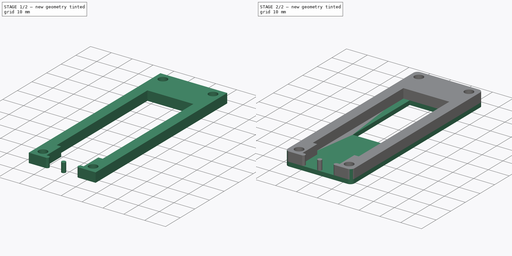
[diagram: build sequence overview — one tinted view per stage of 2, left to right]
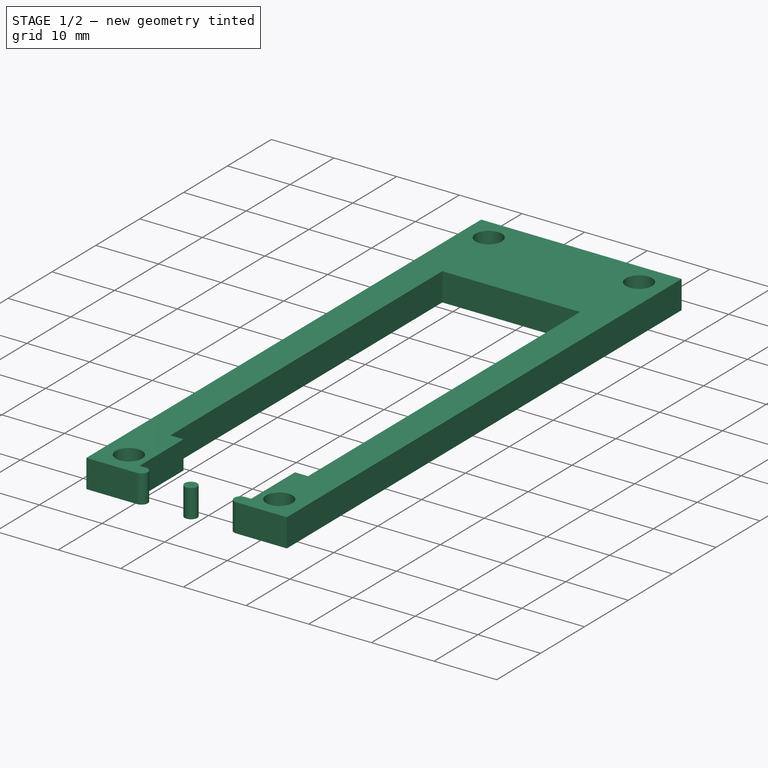
[diagram: stage 1 of 2 — iso view after this stage's code; geometry added in this stage tinted green]
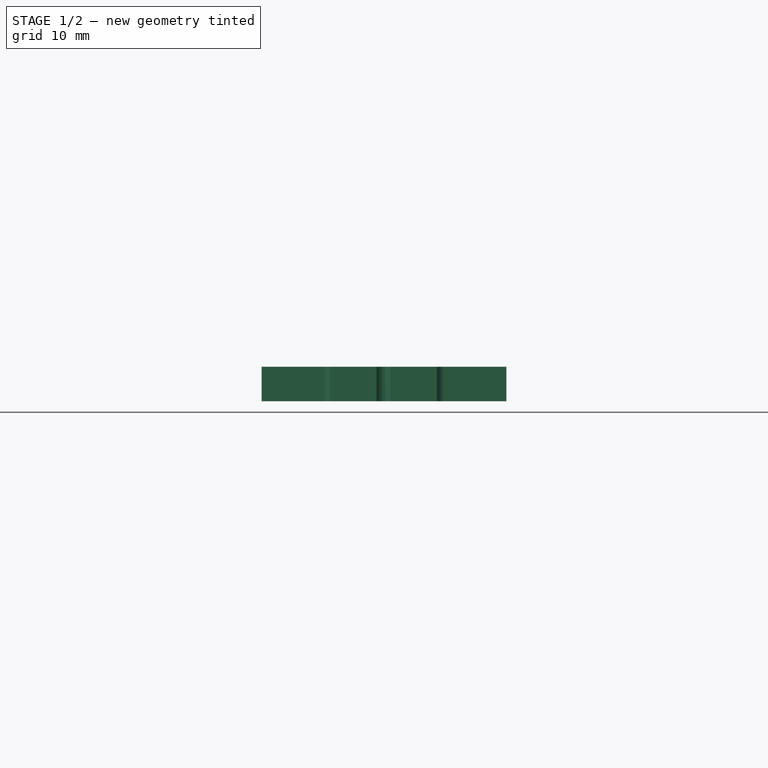
[diagram: stage 1 of 2 — front view after this stage's code; geometry added in this stage tinted green]
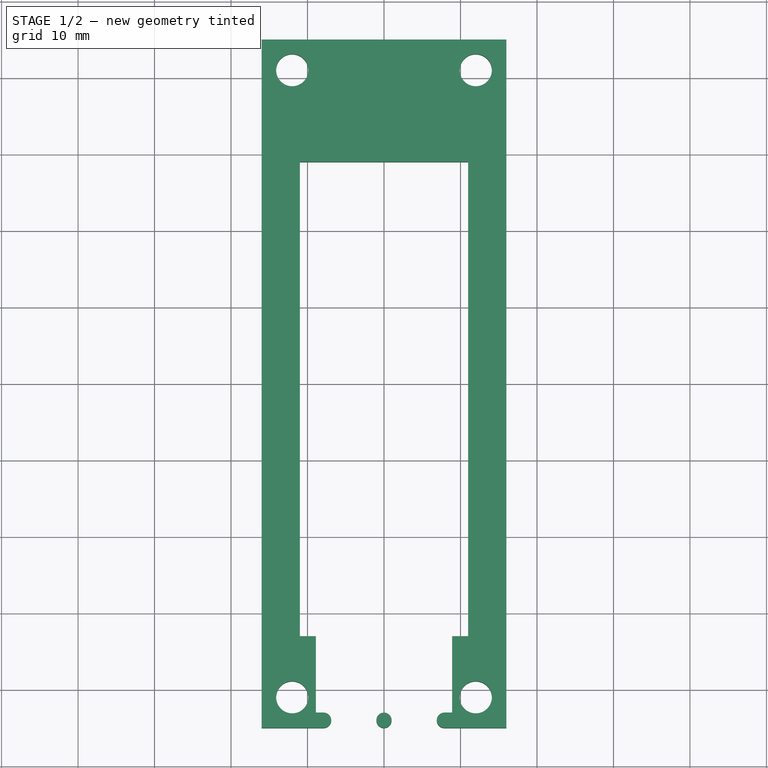
[diagram: stage 1 of 2 — top view after this stage's code; geometry added in this stage tinted green]
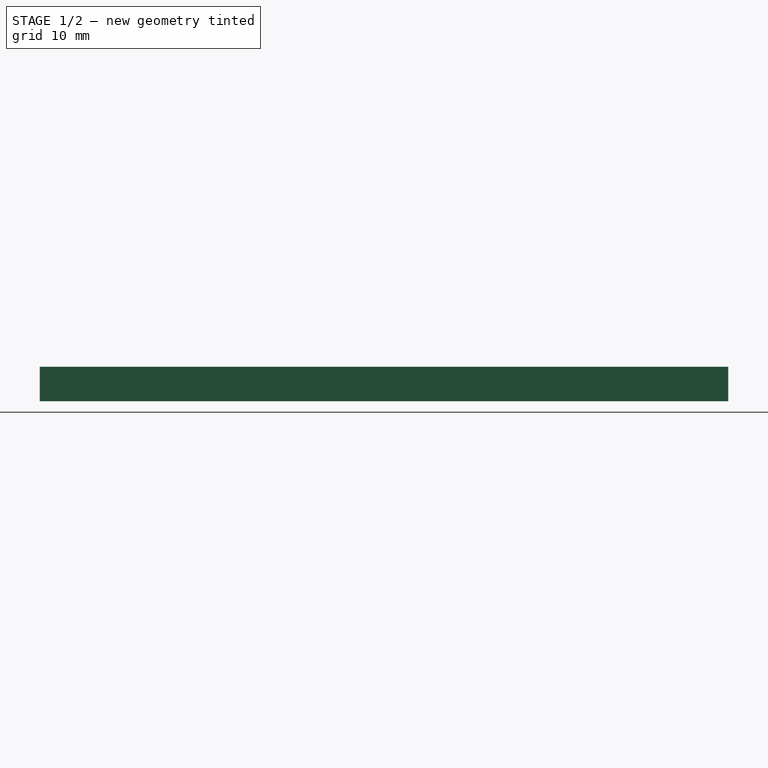
[diagram: stage 1 of 2 — right view after this stage's code; geometry added in this stage tinted green]
FCSTD DOCUMENT  (FreeCAD 0.20R)
Label: top_26650_case
License: All rights reserved
LicenseURL: http://en.wikipedia.org/wiki/All_rights_reserved
objects: Sketcher::SketchObject×2, Part::Extrusion×2, Part::Fillet×2
note: 6 computed .brp shape members not serialized (recipe doc carries the construction recipe); baked Part::Feature solids carry a one-line shape summary decoded from their .brp

FEATURE [Sketcher::SketchObject] Sketch
  FullyConstrained = true
  sketch-geometry (12):
    g0: LineSegment StartX=-16 StartY=45 StartZ=0 EndX=16 EndY=45 EndZ=0
    g1: LineSegment StartX=16 StartY=45 StartZ=0 EndX=16 EndY=-45 EndZ=0
    g2: LineSegment StartX=16 StartY=-45 StartZ=0 EndX=-16 EndY=-45 EndZ=0
    g3: LineSegment StartX=-16 StartY=-45 StartZ=0 EndX=-16 EndY=45 EndZ=0
    g4: Circle CenterX=-12 CenterY=41 CenterZ=0 NormalX=0 NormalY=0 NormalZ=1 AngleXU=0 Radius=2.1
    g5: Circle CenterX=12 CenterY=41 CenterZ=0 NormalX=0 NormalY=0 NormalZ=1 AngleXU=0 Radius=2.1
    g6: Circle CenterX=-12 CenterY=-41 CenterZ=0 NormalX=0 NormalY=0 NormalZ=1 AngleXU=0 Radius=2.1
    g7: Circle CenterX=12 CenterY=-41 CenterZ=0 NormalX=0 NormalY=0 NormalZ=1 AngleXU=0 Radius=2.1
    g8: LineSegment StartX=-8 StartY=29 StartZ=0 EndX=8 EndY=29 EndZ=0
    g9: LineSegment StartX=8 StartY=29 StartZ=0 EndX=8 EndY=-10 EndZ=0
    g10: LineSegment StartX=8 StartY=-10 StartZ=0 EndX=-8 EndY=-10 EndZ=0
    g11: LineSegment StartX=-8 StartY=-10 StartZ=0 EndX=-8 EndY=29 EndZ=0
  constraints (35):
    c: Coincident(g0,g1)
    c: Coincident(g1,g2)
    c: Coincident(g2,g3)
    c: Coincident(g3,g0)
    c: Horizontal(g0)
    c: Horizontal(g2)
    c: Vertical(g1)
    c: Vertical(g3)
    c: DistanceY(g1,g1) = 90
    c: DistanceX(g2,g2) = 32
    c: Equal(g5,g4)
    c: Equal(g7,g5)
    c: Equal(g6,g7)
    c: Diameter(g5) = 4.2
    c: DistanceX(g0,g4) = 4
    c: DistanceX(g5,g0) = 4
    c: DistanceX(g2,g6) = 4
    c: DistanceX(g7,g1) = 4
    c: DistanceY(g2,g6) = 4
    c: DistanceY(g1,g7) = 4
    c: DistanceY(g4,g0) = 4
    c: DistanceY(g5,g0) = 4
    c: Symmetric(g0,g2,g-1)
    c: Coincident(g8,g9)
    c: Coincident(g9,g10)
    c: Coincident(g10,g11)
    c: Coincident(g11,g8)
    c: Horizontal(g8)
    c: Horizontal(g10)
    c: Vertical(g9)
    c: Vertical(g11)
    c: DistanceX(g8,g0) = 8
    c: DistanceX(g0,g8) = 8
    c: DistanceY(g8,g0) = 16
    c: DistanceY(g1,g9) = 35
FEATURE [Part::Extrusion] Extrude
  Base = -> Sketch
  Dir = (0,0,1)
  DirMode = 2
  FaceMakerClass = Part::FaceMakerBullseye
  LengthFwd = 2
  LengthRev = 0
  Solid = true
  Symmetric = false
FEATURE [Sketcher::SketchObject] Sketch001
  ExternalGeometry = -> [Extrude]
  FullyConstrained = true
  MapMode = 5
  Placement = pos=(0,0,2) rot=(0,0,1;0rad)
  Support = -> [Extrude]
  expr: Constraints[11] = .Constraints.pp_spacing
  sketch-geometry (21):
    g0: Circle CenterX=0 CenterY=-44 CenterZ=0 NormalX=0 NormalY=0 NormalZ=1 AngleXU=0 Radius=1
    g1: ArcOfCircle CenterX=7.9 CenterY=-44 CenterZ=0 NormalX=0 NormalY=0 NormalZ=1 AngleXU=0 Radius=1 StartAngle=1.5708 EndAngle=4.71239
    g2: ArcOfCircle CenterX=-7.9 CenterY=-44 CenterZ=0 NormalX=0 NormalY=0 NormalZ=1 AngleXU=0 Radius=1 StartAngle=4.71239 EndAngle=7.85398
    g3: LineSegment StartX=-11 StartY=29 StartZ=0 EndX=-11 EndY=-33 EndZ=0
    g4: LineSegment StartX=-7.9 StartY=-43 StartZ=0 EndX=-8.9 EndY=-43 EndZ=0
    g5: LineSegment StartX=-8.9 StartY=-43 StartZ=0 EndX=-8.9 EndY=-33 EndZ=0
    g6: LineSegment StartX=-8.9 StartY=-33 StartZ=0 EndX=-11 EndY=-33 EndZ=0
    g7: LineSegment StartX=-11 StartY=29 StartZ=0 EndX=11 EndY=29 EndZ=0
    g8: LineSegment StartX=11 StartY=29 StartZ=0 EndX=11 EndY=-33 EndZ=0
    g9: LineSegment StartX=11 StartY=-33 StartZ=0 EndX=8.9 EndY=-33 EndZ=0
    g10: LineSegment StartX=7.9 StartY=-43 StartZ=0 EndX=8.9 EndY=-43 EndZ=0
    g11: LineSegment StartX=8.9 StartY=-43 StartZ=0 EndX=8.9 EndY=-33 EndZ=0
    g12: Circle CenterX=-12 CenterY=-41 CenterZ=0 NormalX=0 NormalY=0 NormalZ=1 AngleXU=0 Radius=2.1
    g13: Circle CenterX=12 CenterY=41 CenterZ=0 NormalX=0 NormalY=0 NormalZ=1 AngleXU=0 Radius=2.1
    g14: Circle CenterX=12 CenterY=-41 CenterZ=0 NormalX=0 NormalY=0 NormalZ=1 AngleXU=0 Radius=2.1
    g15: Circle CenterX=-12 CenterY=41 CenterZ=0 NormalX=0 NormalY=0 NormalZ=1 AngleXU=0 Radius=2.1
    g16: LineSegment StartX=-7.9 StartY=-45 StartZ=0 EndX=-16 EndY=-45 EndZ=0
    g17: LineSegment StartX=-16 StartY=-45 StartZ=0 EndX=-16 EndY=45 EndZ=0
    g18: LineSegment StartX=7.9 StartY=-45 StartZ=0 EndX=16 EndY=-45 EndZ=0
    g19: LineSegment StartX=16 StartY=-45 StartZ=0 EndX=16 EndY=45 EndZ=0
    g20: LineSegment StartX=-16 StartY=45 StartZ=0 EndX=16 EndY=45 EndZ=0
  constraints (57):
    c: PointOnObject(g0,g-2)
    c: Diameter(g0) = 2
    c: DistanceX(g2,g2) = 0
    c: DistanceX(g1,g1) = 0
    c: Diameter(g1) = 2
    c: Diameter(g2) = 2
    c: DistanceX(g2,g2) = 0
    c: DistanceX(g1,g1) = 0
    c: DistanceY(g0,g1) = 0
    c: DistanceY(g0,g2) = 0
    c: DistanceX(g2,g0) = 7.9  'pp_spacing'
    c: DistanceX(g0,g1) = 7.9
    c: PointOnObject(g2,g-4)
    c: Vertical(g3)
    c: Coincident(g4,g2)
    c: Horizontal(g4)
    c: Coincident(g5,g4)
    c: Vertical(g5)
    c: Coincident(g6,g5)
    c: Coincident(g6,g3)
    c: Horizontal(g6)
    c: DistanceX(g4,g4) = 1
    c: DistanceY(g5,g5) = 10
    c: DistanceX(g-5,g3) = 5
    c: Coincident(g7,g3)
    c: Horizontal(g7)
    c: PointOnObject(g-3,g7)
    c: Coincident(g8,g7)
    c: Vertical(g8)
    c: DistanceX(g8,g-4) = 5
    c: Coincident(g9,g8)
    c: Coincident(g10,g1)
    c: Horizontal(g10)
    c: DistanceX(g10,g10) = 1
    c: Coincident(g11,g10)
    c: Vertical(g11)
    c: DistanceY(g11,g11) = 10
    c: Coincident(g9,g11)
    c: Horizontal(g9)
    c: Coincident(g12,g-6)
    c: Diameter(g12) = 4.2
    c: Coincident(g13,g-8)
    c: Coincident(g14,g-7)
    c: Coincident(g15,g-9)
    c: Equal(g14,g12)
    c: Equal(g13,g14)
    c: Equal(g13,g15)
    c: Coincident(g16,g2)
    c: Coincident(g16,g-5)
    c: Coincident(g17,g16)
    c: Coincident(g17,g-5)
    c: Coincident(g18,g1)
    c: Coincident(g18,g-4)
    c: Coincident(g19,g18)
    c: Coincident(g19,g-10)
    c: Coincident(g20,g17)
    c: Coincident(g20,g19)
FEATURE [Part::Extrusion] Extrude001
  Base = -> Sketch001
  Dir = (0,0,1)
  DirMode = 2
  FaceMakerClass = Part::FaceMakerBullseye
  LengthFwd = 4.5
  LengthRev = 0
  Solid = true
  Symmetric = false
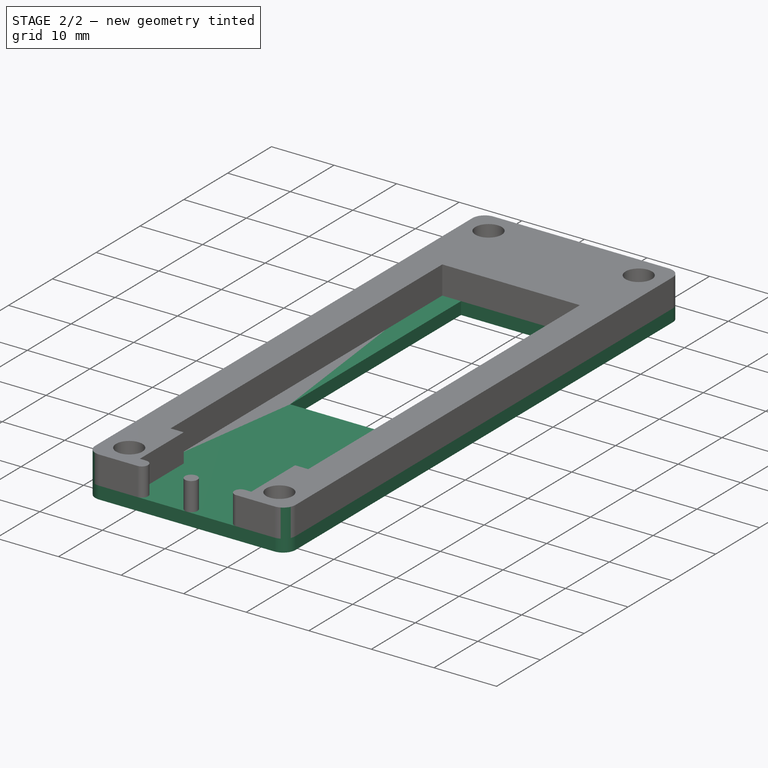
[diagram: stage 2 of 2 — iso view after this stage's code; geometry added in this stage tinted green]
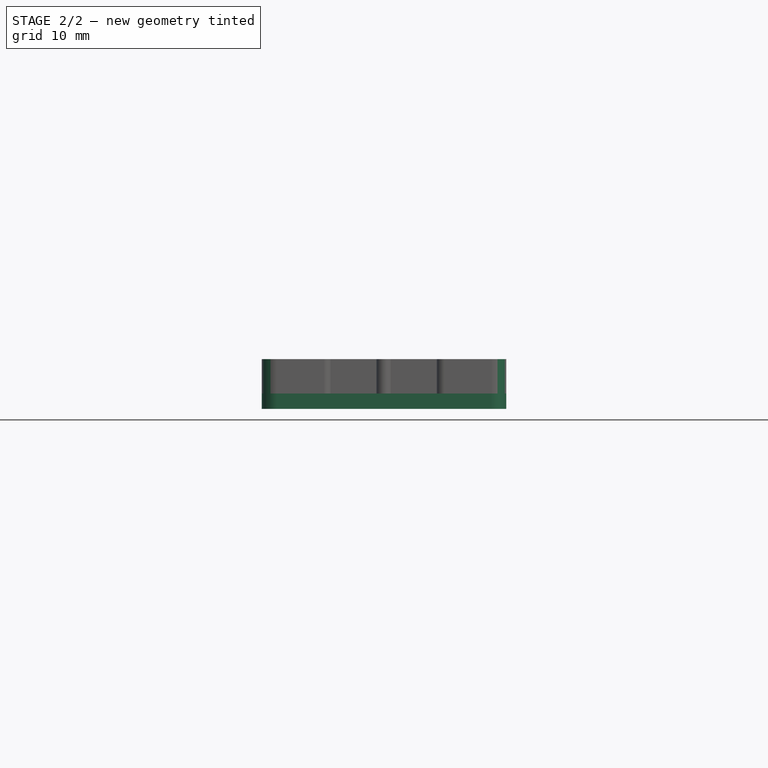
[diagram: stage 2 of 2 — front view after this stage's code; geometry added in this stage tinted green]
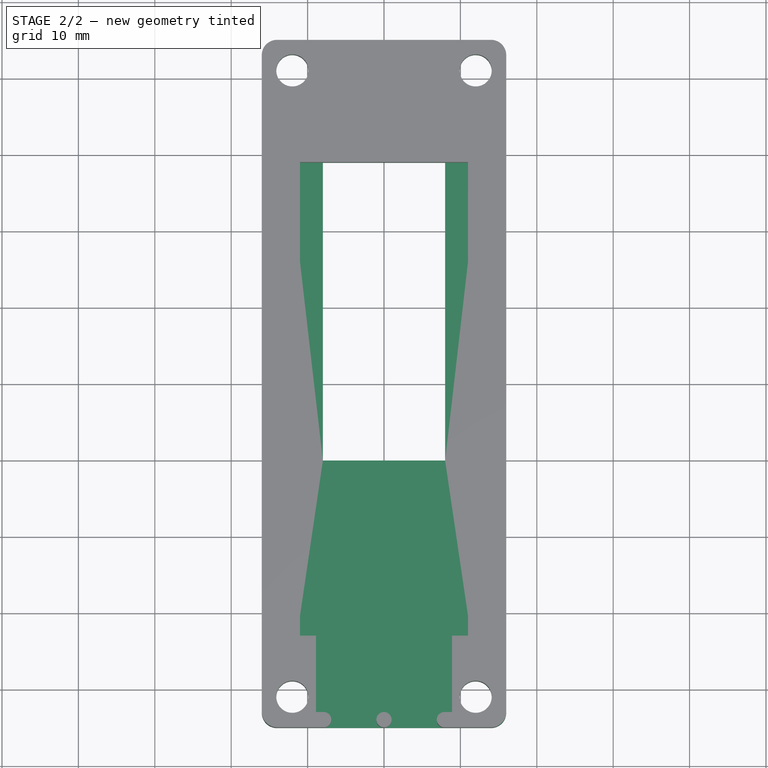
[diagram: stage 2 of 2 — top view after this stage's code; geometry added in this stage tinted green]
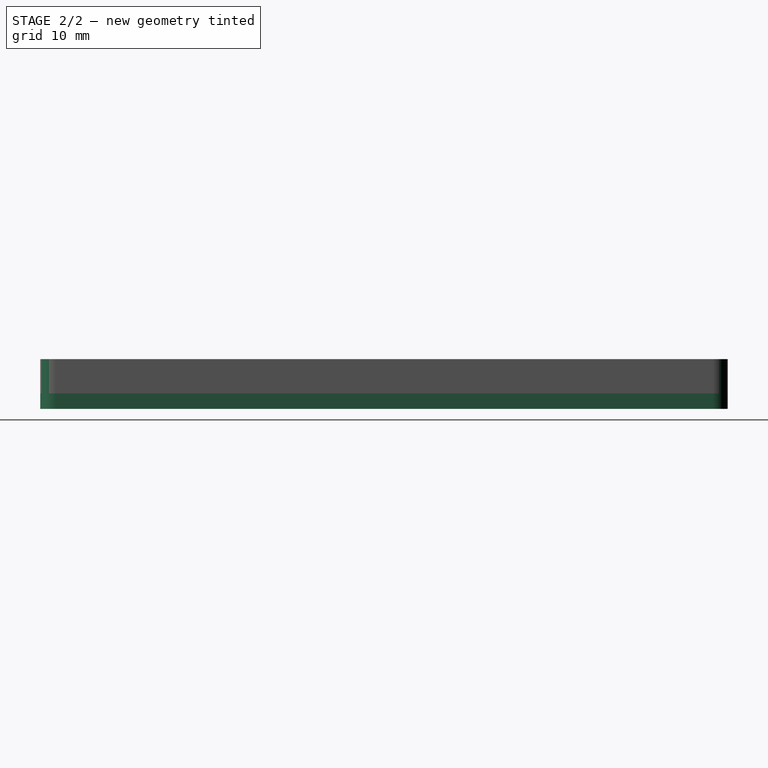
[diagram: stage 2 of 2 — right view after this stage's code; geometry added in this stage tinted green]
FEATURE [Part::Fillet] Fillet
  Base = -> Extrude
  Edges = 4 edges r=2: [Edge1,Edge2,Edge5,Edge8]
FEATURE [Part::Fillet] Fillet001
  Base = -> Extrude001
  Edges = 4 edges r=2: [Edge8,Edge11,Edge14,Edge17]
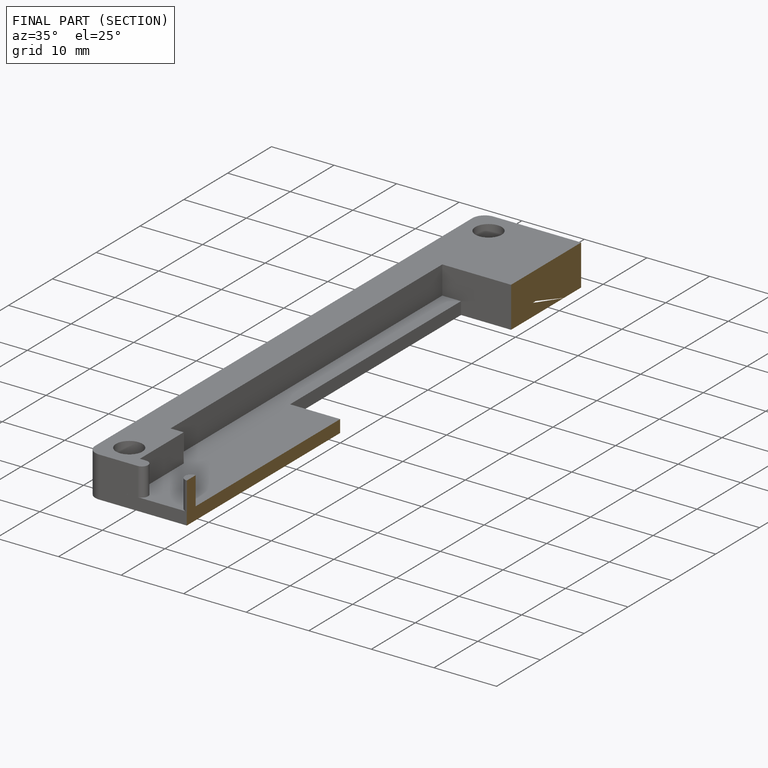
[diagram: finished part — half-section view (interior)]
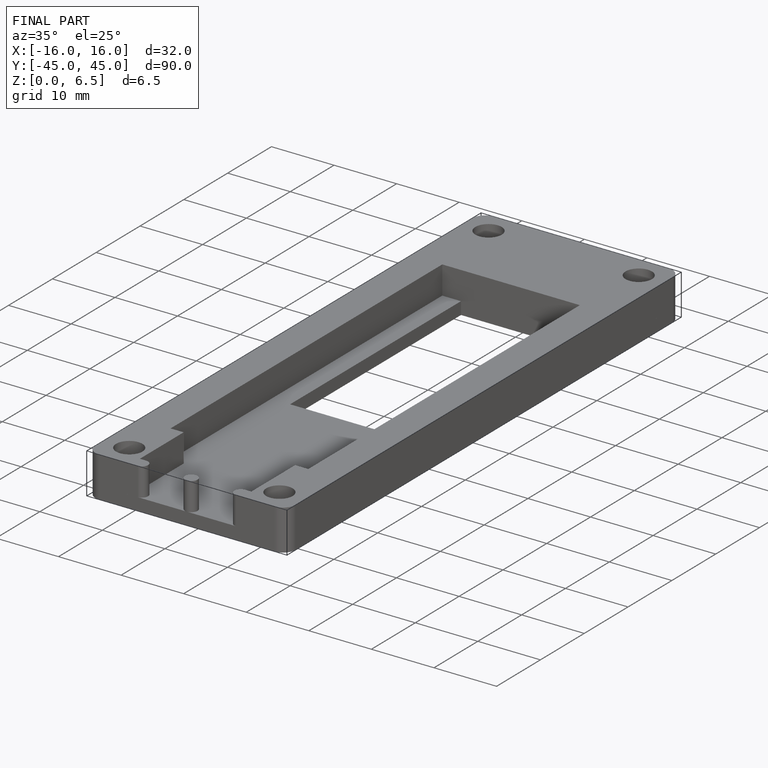
[diagram: finished part — iso view with bounding-box wireframe]
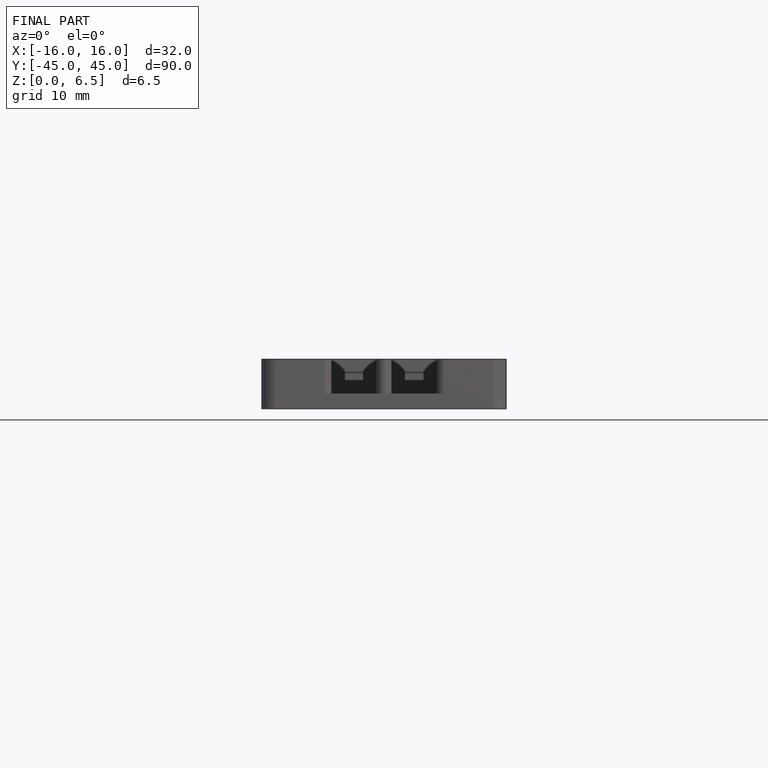
[diagram: finished part — front view with bounding-box wireframe]
